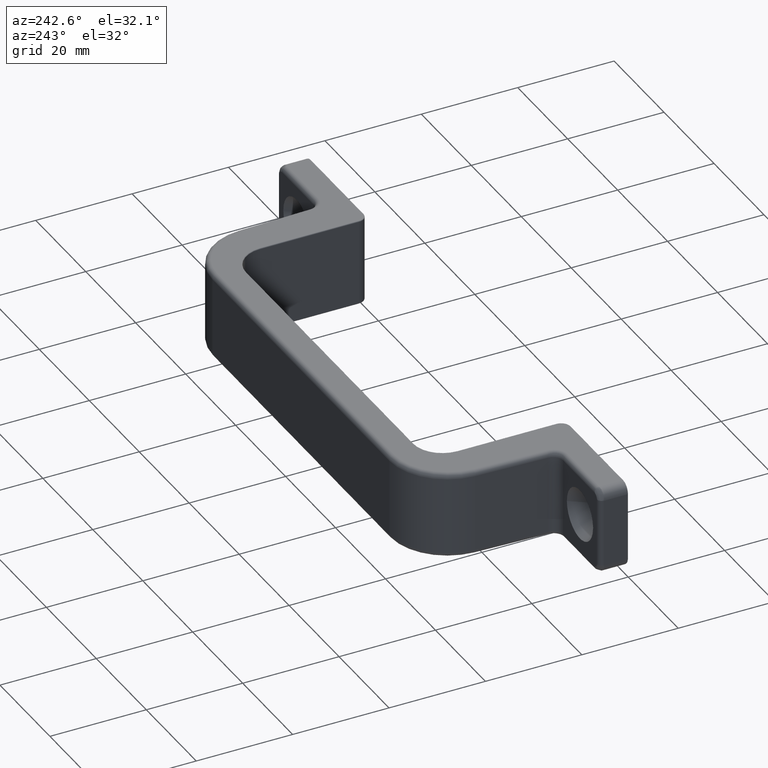
[diagram: clean part render]
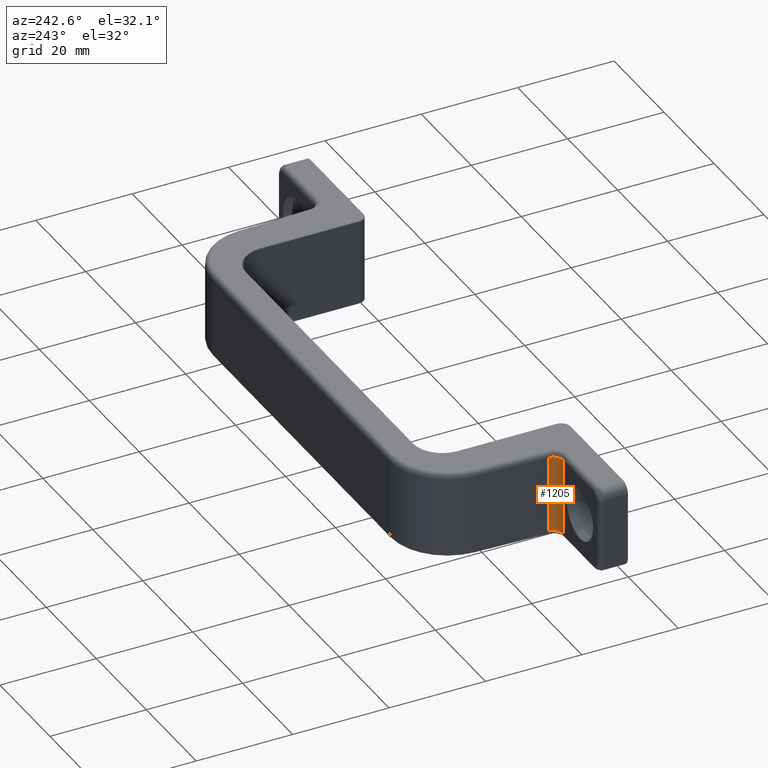
[diagram: same view with one face highlighted and labeled with its STEP entity id]
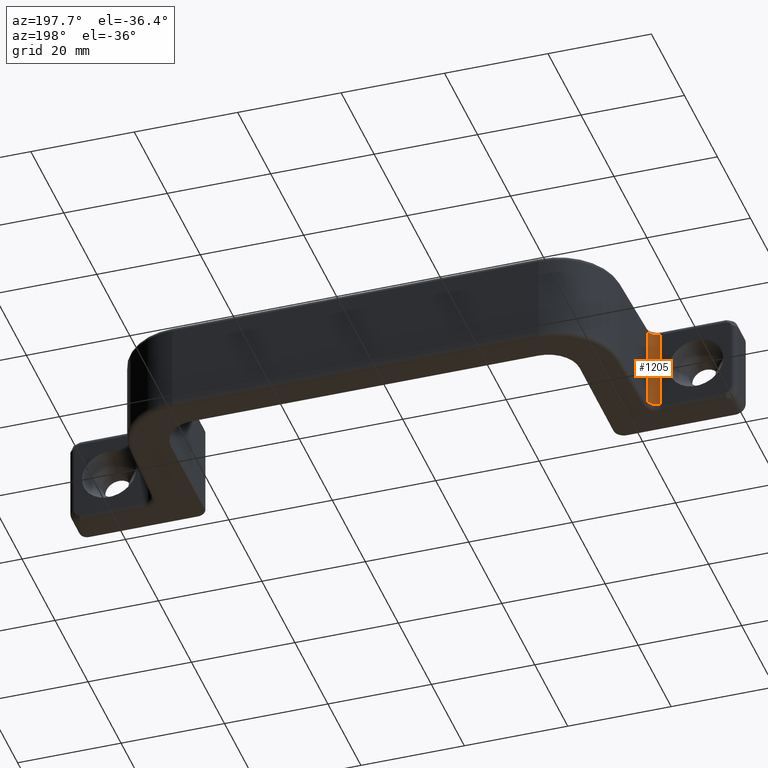
[diagram: same view with one face highlighted and labeled with its STEP entity id]
A machine part, auxiliary view. The second image highlights one B-rep face of the part: STEP entity #1205.
A second angle (auxiliary view) of the same face is appended — the face is thin or edge-on in the first view.
In plain terms, the highlighted cylindrical surface (edge-blend (fillet) strip) has radius 2 mm, axis along (0, 0, -1).
Its self-contained STEP definition (entity closure, byte-faithful):
#108=LINE('',#2189,#180);
#109=LINE('',#2191,#181);
#180=VECTOR('',#1794,16.);
#181=VECTOR('',#1797,16.);
#221=CYLINDRICAL_SURFACE('',#1383,2.);
#295=FACE_OUTER_BOUND('',#381,.T.);
#381=EDGE_LOOP('',(#1067,#1068,#1069,#1070));
#476=CIRCLE('',#1360,2.);
#487=CIRCLE('',#1375,2.);
#578=VERTEX_POINT('',#2120);
#580=VERTEX_POINT('',#2126);
#589=VERTEX_POINT('',#2171);
#590=VERTEX_POINT('',#2175);
#738=EDGE_CURVE('',#578,#580,#476,.T.);
#754=EDGE_CURVE('',#589,#590,#487,.T.);
#760=EDGE_CURVE('',#589,#580,#108,.T.);
#761=EDGE_CURVE('',#578,#590,#109,.T.);
#1067=ORIENTED_EDGE('',*,*,#754,.F.);
#1068=ORIENTED_EDGE('',*,*,#760,.T.);
#1069=ORIENTED_EDGE('',*,*,#738,.F.);
#1070=ORIENTED_EDGE('',*,*,#761,.T.);
#1205=ADVANCED_FACE('',(#295),#221,.F.);
#1360=AXIS2_PLACEMENT_3D('',#2130,#1741,#1742);
#1375=AXIS2_PLACEMENT_3D('',#2177,#1776,#1777);
#1383=AXIS2_PLACEMENT_3D('',#2190,#1795,#1796);
#1741=DIRECTION('center_axis',(0.,0.,-1.));
#1742=DIRECTION('ref_axis',(0.694658370458997,-0.719339800338651,0.));
#1776=DIRECTION('center_axis',(0.,0.,1.));
#1777=DIRECTION('ref_axis',(0.694658370458997,-0.719339800338651,0.));
#1794=DIRECTION('',(0.,0.,1.));
#1795=DIRECTION('center_axis',(0.,0.,-1.));
#1796=DIRECTION('ref_axis',(0.694658370458997,-0.719339800338652,0.));
#1797=DIRECTION('',(0.,0.,-1.));
#2120=CARTESIAN_POINT('',(16.567404104424,7.930201006595,8.));
#2126=CARTESIAN_POINT('',(14.5686224503859,6.,8.));
#2130=CARTESIAN_POINT('Origin',(14.5686224503859,8.,8.));
#2171=CARTESIAN_POINT('',(14.5686224503859,6.,-8.));
#2175=CARTESIAN_POINT('',(16.567404104424,7.930201006595,-8.));
#2177=CARTESIAN_POINT('Origin',(14.5686224503859,8.,-8.));
#2189=CARTESIAN_POINT('',(14.5686224503859,6.,0.));
#2190=CARTESIAN_POINT('Origin',(14.5686224503859,8.,0.));
#2191=CARTESIAN_POINT('',(16.567404104424,7.930201006595,0.));